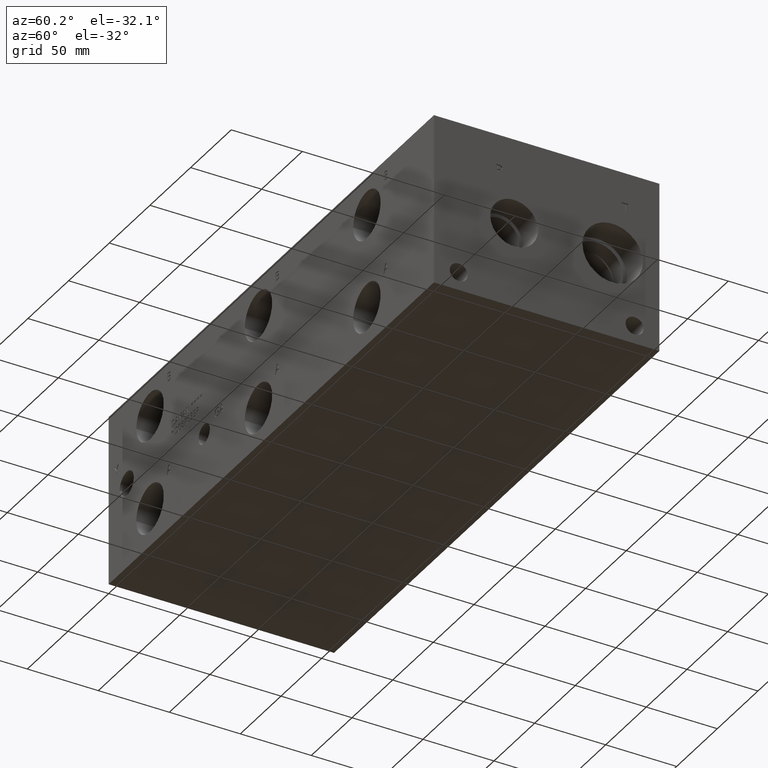
[diagram: clean part render]
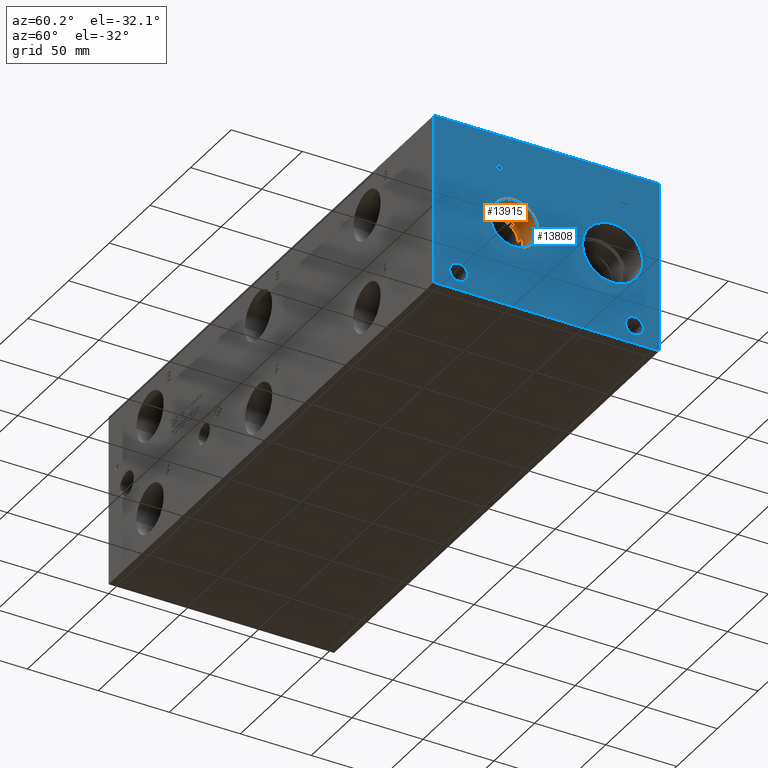
[diagram: same view with the hole feature highlighted: cylindrical wall and planar end face, labeled with their STEP entity ids]
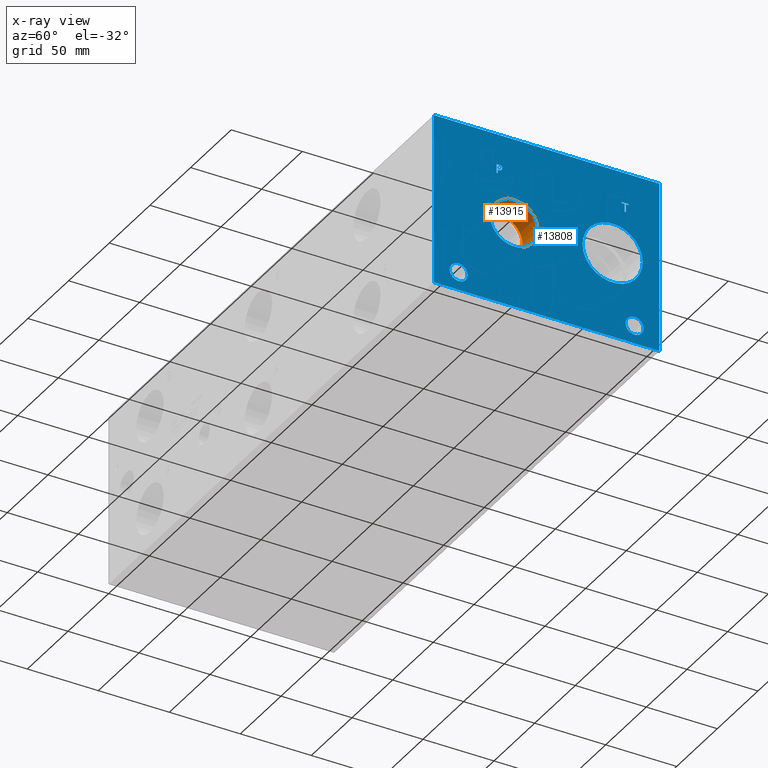
[diagram: x-ray of the same camera — body ghosted, the hole faces saturated]
A machine part, auxiliary view. The highlighted faces form one hole feature of diameter 33.7058 mm: the cylindrical wall (entity #13915, orange) and its adjacent planar end face (entity #13808, blue) — they share a circular edge in the B-rep.
The next image is the same camera in x-ray (body ghosted, the hole faces saturated) — the bore reads through the body.
Wall:
#23=CYLINDRICAL_SURFACE('',#14539,16.8529);
#363=CIRCLE('',#14410,16.8529);
#364=CIRCLE('',#14411,16.8529);
#405=CIRCLE('',#14536,16.8529);
#406=CIRCLE('',#14537,16.8529);
#1733=FACE_OUTER_BOUND('',#2532,.T.);
#2532=EDGE_LOOP('',(#11571,#11572,#11573,#11574,#11575,#11576));
#3884=LINE('',#23449,#5133);
#5133=VECTOR('',#16973,16.8529);
#6132=VERTEX_POINT('',#22631);
#6133=VERTEX_POINT('',#22632);
#6307=VERTEX_POINT('',#23442);
#6308=VERTEX_POINT('',#23443);
#7897=EDGE_CURVE('',#6132,#6133,#363,.T.);
#7898=EDGE_CURVE('',#6133,#6132,#364,.T.);
#8159=EDGE_CURVE('',#6307,#6308,#405,.T.);
#8160=EDGE_CURVE('',#6308,#6307,#406,.T.);
#8162=EDGE_CURVE('',#6133,#6308,#3884,.T.);
#11571=ORIENTED_EDGE('',*,*,#7897,.F.);
#11572=ORIENTED_EDGE('',*,*,#7898,.F.);
#11573=ORIENTED_EDGE('',*,*,#8162,.T.);
#11574=ORIENTED_EDGE('',*,*,#8159,.F.);
#11575=ORIENTED_EDGE('',*,*,#8160,.F.);
#11576=ORIENTED_EDGE('',*,*,#8162,.F.);
#13915=ADVANCED_FACE('',(#1733),#23,.F.);
#14410=AXIS2_PLACEMENT_3D('',#22633,#16531,#16532);
#14411=AXIS2_PLACEMENT_3D('',#22634,#16533,#16534);
#14536=AXIS2_PLACEMENT_3D('',#23444,#16965,#16966);
#14537=AXIS2_PLACEMENT_3D('',#23445,#16967,#16968);
#14539=AXIS2_PLACEMENT_3D('',#23448,#16971,#16972);
#16531=DIRECTION('center_axis',(-1.,0.,0.));
#16532=DIRECTION('ref_axis',(0.,1.,0.));
#16533=DIRECTION('center_axis',(-1.,0.,0.));
#16534=DIRECTION('ref_axis',(0.,1.,0.));
#16965=DIRECTION('center_axis',(1.,0.,0.));
#16966=DIRECTION('ref_axis',(0.,1.,0.));
#16967=DIRECTION('center_axis',(1.,0.,0.));
#16968=DIRECTION('ref_axis',(0.,1.,0.));
#16971=DIRECTION('center_axis',(1.,0.,0.));
#16972=DIRECTION('ref_axis',(0.,1.,0.));
#16973=DIRECTION('',(-1.,0.,0.));
#22631=CARTESIAN_POINT('',(400.05,73.3425,60.325));
#22632=CARTESIAN_POINT('',(400.05,39.6367,60.325));
#22633=CARTESIAN_POINT('Origin',(400.05,56.4896,60.325));
#22634=CARTESIAN_POINT('Origin',(400.05,56.4896,60.325));
#23442=CARTESIAN_POINT('',(381.0508,73.3425,60.325));
#23443=CARTESIAN_POINT('',(381.0508,39.6367,60.325));
#23444=CARTESIAN_POINT('Origin',(381.0508,56.4896,60.325));
#23445=CARTESIAN_POINT('Origin',(381.0508,56.4896,60.325));
#23448=CARTESIAN_POINT('Origin',(390.5504,56.4896,60.325));
#23449=CARTESIAN_POINT('',(390.5504,39.6367,60.325));
End face:
#361=CIRCLE('',#14408,21.2344);
#362=CIRCLE('',#14409,21.2344);
#363=CIRCLE('',#14410,16.8529);
#364=CIRCLE('',#14411,16.8529);
#365=CIRCLE('',#14412,6.35);
#366=CIRCLE('',#14413,6.35);
#367=CIRCLE('',#14414,6.35);
#368=CIRCLE('',#14415,6.35);
#991=B_SPLINE_CURVE_WITH_KNOTS('',2,(#22524,#22525,#22526,#22527),
 .UNSPECIFIED.,.F.,.F.,(3,1,3),(0.,1.,2.),.UNSPECIFIED.);
#993=B_SPLINE_CURVE_WITH_KNOTS('',2,(#22545,#22546,#22547,#22548),
 .UNSPECIFIED.,.F.,.F.,(3,1,3),(0.,1.,2.),.UNSPECIFIED.);
#995=B_SPLINE_CURVE_WITH_KNOTS('',2,(#22594,#22595,#22596,#22597),
 .UNSPECIFIED.,.F.,.F.,(3,1,3),(0.,1.,2.),.UNSPECIFIED.);
#997=B_SPLINE_CURVE_WITH_KNOTS('',2,(#22612,#22613,#22614,#22615),
 .UNSPECIFIED.,.F.,.F.,(3,1,3),(0.,1.,2.),.UNSPECIFIED.);
#1090=FACE_BOUND('',#2406,.T.);
#1091=FACE_BOUND('',#2407,.T.);
#1092=FACE_BOUND('',#2408,.T.);
#1093=FACE_BOUND('',#2409,.T.);
#1094=FACE_BOUND('',#2410,.T.);
#1095=FACE_BOUND('',#2411,.T.);
#1626=FACE_OUTER_BOUND('',#2405,.T.);
#2405=EDGE_LOOP('',(#11029,#11030,#11031,#11032));
#2406=EDGE_LOOP('',(#11033,#11034));
#2407=EDGE_LOOP('',(#11035,#11036));
#2408=EDGE_LOOP('',(#11037,#11038));
#2409=EDGE_LOOP('',(#11039,#11040));
#2410=EDGE_LOOP('',(#11041,#11042,#11043,#11044,#11045,#11046,#11047,#11048));
#2411=EDGE_LOOP('',(#11049,#11050,#11051,#11052,#11053,#11054,#11055,#11056,
#11057));
#2807=LINE('',#18068,#4056);
#3683=LINE('',#22557,#4932);
#3686=LINE('',#22563,#4935);
#3689=LINE('',#22569,#4938);
#3692=LINE('',#22575,#4941);
#3695=LINE('',#22581,#4944);
#3699=LINE('',#22623,#4948);
#3700=LINE('',#22625,#4949);
#3701=LINE('',#22626,#4950);
#3702=LINE('',#22645,#4951);
#3703=LINE('',#22647,#4952);
#3704=LINE('',#22649,#4953);
#3705=LINE('',#22651,#4954);
#3706=LINE('',#22653,#4955);
#3707=LINE('',#22655,#4956);
#3708=LINE('',#22657,#4957);
#3709=LINE('',#22658,#4958);
#4056=VECTOR('',#15044,10.);
#4932=VECTOR('',#16496,10.);
#4935=VECTOR('',#16501,10.);
#4938=VECTOR('',#16506,10.);
#4941=VECTOR('',#16511,10.);
#4944=VECTOR('',#16516,10.);
#4948=VECTOR('',#16524,10.);
#4949=VECTOR('',#16525,10.);
#4950=VECTOR('',#16526,10.);
#4951=VECTOR('',#16543,10.);
#4952=VECTOR('',#16544,10.);
#4953=VECTOR('',#16545,10.);
#4954=VECTOR('',#16546,10.);
#4955=VECTOR('',#16547,10.);
#4956=VECTOR('',#16548,10.);
#4957=VECTOR('',#16549,10.);
#4958=VECTOR('',#16550,10.);
#5294=VERTEX_POINT('',#18065);
#5295=VERTEX_POINT('',#18067);
#6110=VERTEX_POINT('',#22522);
#6111=VERTEX_POINT('',#22523);
#6114=VERTEX_POINT('',#22544);
#6116=VERTEX_POINT('',#22556);
#6118=VERTEX_POINT('',#22562);
#6120=VERTEX_POINT('',#22568);
#6122=VERTEX_POINT('',#22574);
#6124=VERTEX_POINT('',#22580);
#6126=VERTEX_POINT('',#22593);
#6128=VERTEX_POINT('',#22622);
#6129=VERTEX_POINT('',#22624);
#6130=VERTEX_POINT('',#22627);
#6131=VERTEX_POINT('',#22628);
#6132=VERTEX_POINT('',#22631);
#6133=VERTEX_POINT('',#22632);
#6134=VERTEX_POINT('',#22635);
#6135=VERTEX_POINT('',#22636);
#6136=VERTEX_POINT('',#22639);
#6137=VERTEX_POINT('',#22640);
#6138=VERTEX_POINT('',#22643);
#6139=VERTEX_POINT('',#22644);
#6140=VERTEX_POINT('',#22646);
#6141=VERTEX_POINT('',#22648);
#6142=VERTEX_POINT('',#22650);
#6143=VERTEX_POINT('',#22652);
#6144=VERTEX_POINT('',#22654);
#6145=VERTEX_POINT('',#22656);
#6664=EDGE_CURVE('',#5294,#5295,#2807,.T.);
#7865=EDGE_CURVE('',#6110,#6111,#991,.T.);
#7869=EDGE_CURVE('',#6114,#6110,#993,.T.);
#7872=EDGE_CURVE('',#6116,#6114,#3683,.T.);
#7875=EDGE_CURVE('',#6118,#6116,#3686,.T.);
#7878=EDGE_CURVE('',#6120,#6118,#3689,.T.);
#7881=EDGE_CURVE('',#6122,#6120,#3692,.T.);
#7884=EDGE_CURVE('',#6124,#6122,#3695,.T.);
#7887=EDGE_CURVE('',#6126,#6124,#995,.T.);
#7890=EDGE_CURVE('',#6111,#6126,#997,.T.);
#7892=EDGE_CURVE('',#5294,#6128,#3699,.T.);
#7893=EDGE_CURVE('',#6128,#6129,#3700,.T.);
#7894=EDGE_CURVE('',#5295,#6129,#3701,.T.);
#7895=EDGE_CURVE('',#6130,#6131,#361,.T.);
#7896=EDGE_CURVE('',#6131,#6130,#362,.T.);
#7897=EDGE_CURVE('',#6132,#6133,#363,.T.);
#7898=EDGE_CURVE('',#6133,#6132,#364,.T.);
#7899=EDGE_CURVE('',#6134,#6135,#365,.T.);
#7900=EDGE_CURVE('',#6135,#6134,#366,.T.);
#7901=EDGE_CURVE('',#6136,#6137,#367,.T.);
#7902=EDGE_CURVE('',#6137,#6136,#368,.T.);
#7903=EDGE_CURVE('',#6138,#6139,#3702,.T.);
#7904=EDGE_CURVE('',#6139,#6140,#3703,.T.);
#7905=EDGE_CURVE('',#6140,#6141,#3704,.T.);
#7906=EDGE_CURVE('',#6141,#6142,#3705,.T.);
#7907=EDGE_CURVE('',#6142,#6143,#3706,.T.);
#7908=EDGE_CURVE('',#6143,#6144,#3707,.T.);
#7909=EDGE_CURVE('',#6144,#6145,#3708,.T.);
#7910=EDGE_CURVE('',#6145,#6138,#3709,.T.);
#11029=ORIENTED_EDGE('',*,*,#7892,.T.);
#11030=ORIENTED_EDGE('',*,*,#7893,.T.);
#11031=ORIENTED_EDGE('',*,*,#7894,.F.);
#11032=ORIENTED_EDGE('',*,*,#6664,.F.);
#11033=ORIENTED_EDGE('',*,*,#7895,.T.);
#11034=ORIENTED_EDGE('',*,*,#7896,.T.);
#11035=ORIENTED_EDGE('',*,*,#7897,.T.);
#11036=ORIENTED_EDGE('',*,*,#7898,.T.);
#11037=ORIENTED_EDGE('',*,*,#7899,.T.);
#11038=ORIENTED_EDGE('',*,*,#7900,.T.);
#11039=ORIENTED_EDGE('',*,*,#7901,.T.);
#11040=ORIENTED_EDGE('',*,*,#7902,.T.);
#11041=ORIENTED_EDGE('',*,*,#7903,.T.);
#11042=ORIENTED_EDGE('',*,*,#7904,.T.);
#11043=ORIENTED_EDGE('',*,*,#7905,.T.);
#11044=ORIENTED_EDGE('',*,*,#7906,.T.);
#11045=ORIENTED_EDGE('',*,*,#7907,.T.);
#11046=ORIENTED_EDGE('',*,*,#7908,.T.);
#11047=ORIENTED_EDGE('',*,*,#7909,.T.);
#11048=ORIENTED_EDGE('',*,*,#7910,.T.);
#11049=ORIENTED_EDGE('',*,*,#7865,.T.);
#11050=ORIENTED_EDGE('',*,*,#7890,.T.);
#11051=ORIENTED_EDGE('',*,*,#7887,.T.);
#11052=ORIENTED_EDGE('',*,*,#7884,.T.);
#11053=ORIENTED_EDGE('',*,*,#7881,.T.);
#11054=ORIENTED_EDGE('',*,*,#7878,.T.);
#11055=ORIENTED_EDGE('',*,*,#7875,.T.);
#11056=ORIENTED_EDGE('',*,*,#7872,.T.);
#11057=ORIENTED_EDGE('',*,*,#7869,.T.);
#12743=PLANE('',#14407);
#13808=ADVANCED_FACE('',(#1626,#1090,#1091,#1092,#1093,#1094,#1095),#12743,
 .T.);
#14407=AXIS2_PLACEMENT_3D('',#22621,#16522,#16523);
#14408=AXIS2_PLACEMENT_3D('',#22629,#16527,#16528);
#14409=AXIS2_PLACEMENT_3D('',#22630,#16529,#16530);
#14410=AXIS2_PLACEMENT_3D('',#22633,#16531,#16532);
#14411=AXIS2_PLACEMENT_3D('',#22634,#16533,#16534);
#14412=AXIS2_PLACEMENT_3D('',#22637,#16535,#16536);
#14413=AXIS2_PLACEMENT_3D('',#22638,#16537,#16538);
#14414=AXIS2_PLACEMENT_3D('',#22641,#16539,#16540);
#14415=AXIS2_PLACEMENT_3D('',#22642,#16541,#16542);
#15044=DIRECTION('',(0.,0.,1.));
#16496=DIRECTION('',(0.,1.,0.));
#16501=DIRECTION('',(0.,0.,1.));
#16506=DIRECTION('',(0.,-1.,0.));
#16511=DIRECTION('',(0.,0.,-1.));
#16516=DIRECTION('',(0.,-1.,0.));
#16522=DIRECTION('center_axis',(1.,0.,0.));
#16523=DIRECTION('ref_axis',(0.,1.,0.));
#16524=DIRECTION('',(0.,1.,0.));
#16525=DIRECTION('',(0.,0.,1.));
#16526=DIRECTION('',(0.,1.,0.));
#16527=DIRECTION('center_axis',(-1.,0.,0.));
#16528=DIRECTION('ref_axis',(0.,1.,0.));
#16529=DIRECTION('center_axis',(-1.,0.,0.));
#16530=DIRECTION('ref_axis',(0.,1.,0.));
#16531=DIRECTION('center_axis',(-1.,0.,0.));
#16532=DIRECTION('ref_axis',(0.,1.,0.));
#16533=DIRECTION('center_axis',(-1.,0.,0.));
#16534=DIRECTION('ref_axis',(0.,1.,0.));
#16535=DIRECTION('center_axis',(-1.,0.,0.));
#16536=DIRECTION('ref_axis',(0.,1.,0.));
#16537=DIRECTION('center_axis',(-1.,0.,0.));
#16538=DIRECTION('ref_axis',(0.,1.,0.));
#16539=DIRECTION('center_axis',(-1.,0.,0.));
#16540=DIRECTION('ref_axis',(0.,1.,0.));
#16541=DIRECTION('center_axis',(-1.,0.,0.));
#16542=DIRECTION('ref_axis',(0.,1.,0.));
#16543=DIRECTION('',(0.,-1.,0.));
#16544=DIRECTION('',(0.,0.,1.));
#16545=DIRECTION('',(0.,-1.,0.));
#16546=DIRECTION('',(0.,0.,1.));
#16547=DIRECTION('',(0.,1.,0.));
#16548=DIRECTION('',(0.,0.,-1.));
#16549=DIRECTION('',(0.,-1.,0.));
#16550=DIRECTION('',(0.,0.,-1.));
#18065=CARTESIAN_POINT('',(400.05,0.,0.));
#18067=CARTESIAN_POINT('',(400.05,0.,120.65));
#18068=CARTESIAN_POINT('',(400.05,0.,0.));
#22522=CARTESIAN_POINT('',(400.05,47.4361672023594,98.7907681439707));
#22523=CARTESIAN_POINT('',(400.05,48.192609654532,97.272737372604));
#22524=CARTESIAN_POINT('Ctrl Pts',(400.05,47.4361672023594,98.7907681439707));
#22525=CARTESIAN_POINT('Ctrl Pts',(400.05,47.7912320268486,98.5489123939564));
#22526=CARTESIAN_POINT('Ctrl Pts',(400.05,48.192609654532,97.802761675827));
#22527=CARTESIAN_POINT('Ctrl Pts',(400.05,48.192609654532,97.272737372604));
#22544=CARTESIAN_POINT('',(400.05,45.7740521543883,99.1869999046326));
#22545=CARTESIAN_POINT('Ctrl Pts',(400.05,45.7740521543883,99.1869999046326));
#22546=CARTESIAN_POINT('Ctrl Pts',(400.05,46.3400975267624,99.1869999046326));
#22547=CARTESIAN_POINT('Ctrl Pts',(400.05,47.132561048086,99.0017486918556));
#22548=CARTESIAN_POINT('Ctrl Pts',(400.05,47.4361672023594,98.7907681439707));
#22556=CARTESIAN_POINT('',(400.05,44.1788333776978,99.1869999046326));
#22557=CARTESIAN_POINT('',(400.05,22.0894166888489,99.1869999046326));
#22562=CARTESIAN_POINT('',(400.05,44.1788333776978,92.837));
#22563=CARTESIAN_POINT('',(400.05,44.1788333776978,46.4185));
#22568=CARTESIAN_POINT('',(400.05,45.0227555692373,92.837));
#22569=CARTESIAN_POINT('',(400.05,22.5113777846186,92.837));
#22574=CARTESIAN_POINT('',(400.05,45.0227555692373,95.2040988299279));
#22575=CARTESIAN_POINT('',(400.05,45.0227555692373,47.6020494149639));
#22580=CARTESIAN_POINT('',(400.05,45.7380310852372,95.2040988299279));
#22581=CARTESIAN_POINT('',(400.05,22.8690155426186,95.2040988299279));
#22593=CARTESIAN_POINT('',(400.05,47.6368560162011,95.8627698086904));
#22594=CARTESIAN_POINT('Ctrl Pts',(400.05,47.6368560162011,95.8627698086904));
#22595=CARTESIAN_POINT('Ctrl Pts',(400.05,47.3075205268198,95.5385801863307));
#22596=CARTESIAN_POINT('Ctrl Pts',(400.05,46.4172855320861,95.2040988299279));
#22597=CARTESIAN_POINT('Ctrl Pts',(400.05,45.7380310852372,95.2040988299279));
#22612=CARTESIAN_POINT('Ctrl Pts',(400.05,48.192609654532,97.272737372604));
#22613=CARTESIAN_POINT('Ctrl Pts',(400.05,48.192609654532,96.8610680108774));
#22614=CARTESIAN_POINT('Ctrl Pts',(400.05,47.8992952343018,96.1200631597695));
#22615=CARTESIAN_POINT('Ctrl Pts',(400.05,47.6368560162011,95.8627698086904));
#22621=CARTESIAN_POINT('Origin',(400.05,0.,0.));
#22622=CARTESIAN_POINT('',(400.05,158.75,0.));
#22623=CARTESIAN_POINT('',(400.05,0.,0.));
#22624=CARTESIAN_POINT('',(400.05,158.75,120.65));
#22625=CARTESIAN_POINT('',(400.05,158.75,0.));
#22626=CARTESIAN_POINT('',(400.05,0.,120.65));
#22627=CARTESIAN_POINT('',(400.05,147.066,60.325));
#22628=CARTESIAN_POINT('',(400.05,104.5972,60.325));
#22629=CARTESIAN_POINT('Origin',(400.05,125.8316,60.325));
#22630=CARTESIAN_POINT('Origin',(400.05,125.8316,60.325));
#22631=CARTESIAN_POINT('',(400.05,73.3425,60.325));
#22632=CARTESIAN_POINT('',(400.05,39.6367,60.325));
#22633=CARTESIAN_POINT('Origin',(400.05,56.4896,60.325));
#22634=CARTESIAN_POINT('Origin',(400.05,56.4896,60.325));
#22635=CARTESIAN_POINT('',(400.05,147.6248,12.7));
#22636=CARTESIAN_POINT('',(400.05,134.9248,12.7));
#22637=CARTESIAN_POINT('Origin',(400.05,141.2748,12.7));
#22638=CARTESIAN_POINT('Origin',(400.05,141.2748,12.7));
#22639=CARTESIAN_POINT('',(400.05,23.7998,12.7));
#22640=CARTESIAN_POINT('',(400.05,11.0998,12.7));
#22641=CARTESIAN_POINT('Origin',(400.05,17.4498,12.7));
#22642=CARTESIAN_POINT('Origin',(400.05,17.4498,12.7));
#22643=CARTESIAN_POINT('',(400.05,135.150765271453,92.837));
#22644=CARTESIAN_POINT('',(400.05,134.306843079914,92.837));
#22645=CARTESIAN_POINT('',(400.05,67.5753826357265,92.837));
#22646=CARTESIAN_POINT('',(400.05,134.306843079914,98.4357033194816));
#22647=CARTESIAN_POINT('',(400.05,134.306843079914,46.4185));
#22648=CARTESIAN_POINT('',(400.05,132.176454132978,98.4357033194816));
#22649=CARTESIAN_POINT('',(400.05,67.1534215399568,98.4357033194816));
#22650=CARTESIAN_POINT('',(400.05,132.176454132978,99.1869999046326));
#22651=CARTESIAN_POINT('',(400.05,132.176454132978,49.2178516597408));
#22652=CARTESIAN_POINT('',(400.05,137.281154218388,99.1869999046326));
#22653=CARTESIAN_POINT('',(400.05,66.0882270664892,99.1869999046326));
#22654=CARTESIAN_POINT('',(400.05,137.281154218388,98.4357033194816));
#22655=CARTESIAN_POINT('',(400.05,137.281154218388,49.5934999523163));
#22656=CARTESIAN_POINT('',(400.05,135.150765271453,98.4357033194816));
#22657=CARTESIAN_POINT('',(400.05,68.640577109194,98.4357033194816));
#22658=CARTESIAN_POINT('',(400.05,135.150765271453,49.2178516597408));